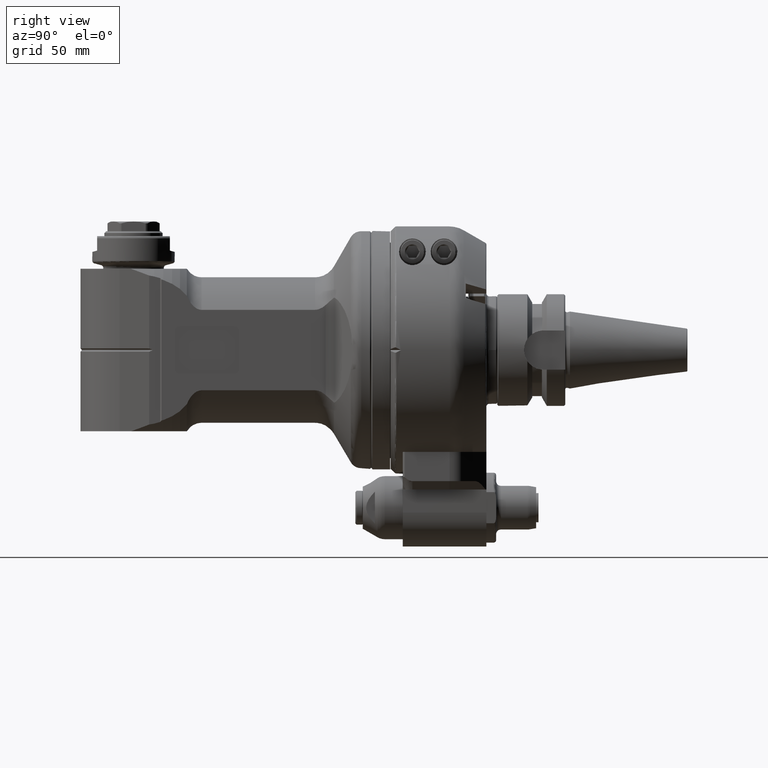
[diagram: clean part render]
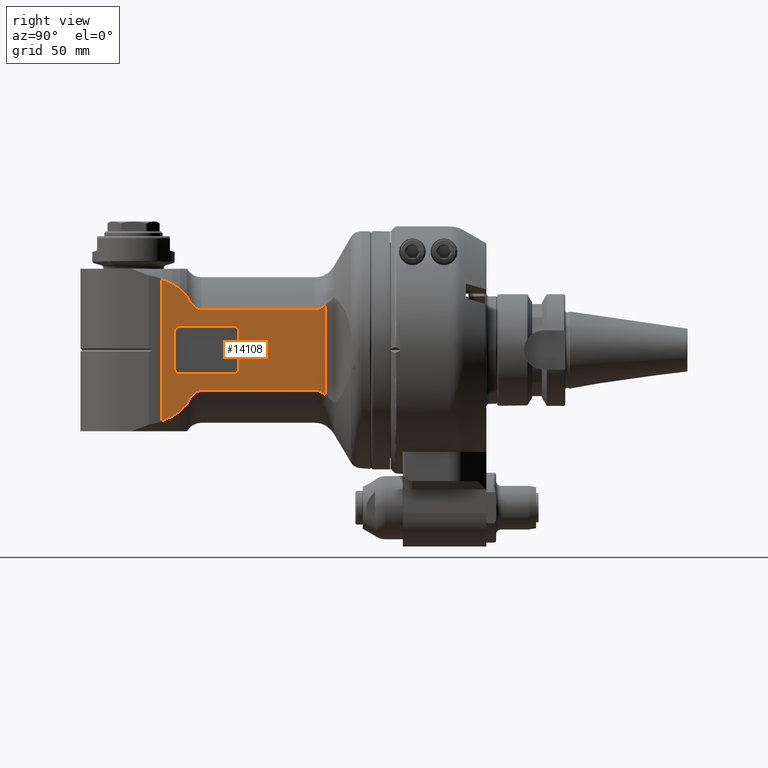
[diagram: same view with one face highlighted and labeled with its STEP entity id]
A machine part, right view. The second image highlights one B-rep face of the part: STEP entity #14108.
In plain terms, the highlighted planar face has unit normal (-1, 0, 0).
Its self-contained STEP definition (entity closure, byte-faithful):
#315=FACE_BOUND('',#2885,.T.);
#479=(
BOUNDED_CURVE()
B_SPLINE_CURVE(2,(#54399,#54400,#54401),.UNSPECIFIED.,.F.,.F.)
B_SPLINE_CURVE_WITH_KNOTS((3,3),(10.0626799056423,10.2526008068643),
 .UNSPECIFIED.)
CURVE()
GEOMETRIC_REPRESENTATION_ITEM()
RATIONAL_B_SPLINE_CURVE((1.02840572051089,1.01882819886388,1.00887903028035))
REPRESENTATION_ITEM('')
);
#480=(
BOUNDED_CURVE()
B_SPLINE_CURVE(2,(#54435,#54436,#54437),.UNSPECIFIED.,.F.,.F.)
B_SPLINE_CURVE_WITH_KNOTS((3,3),(-0.959764099372572,-0.6704163678676),
 .UNSPECIFIED.)
CURVE()
GEOMETRIC_REPRESENTATION_ITEM()
RATIONAL_B_SPLINE_CURVE((1.13756783349126,1.11959978720312,1.09996228300112))
REPRESENTATION_ITEM('')
);
#481=(
BOUNDED_CURVE()
B_SPLINE_CURVE(2,(#54438,#54439,#54440),.UNSPECIFIED.,.F.,.F.)
B_SPLINE_CURVE_WITH_KNOTS((3,3),(-0.532913393846783,-0.318014091893998),
 .UNSPECIFIED.)
CURVE()
GEOMETRIC_REPRESENTATION_ITEM()
RATIONAL_B_SPLINE_CURVE((1.06657051683378,1.05402008065282,1.04076639606592))
REPRESENTATION_ITEM('')
);
#482=(
BOUNDED_CURVE()
B_SPLINE_CURVE(2,(#54442,#54443,#54444),.UNSPECIFIED.,.F.,.F.)
B_SPLINE_CURVE_WITH_KNOTS((3,3),(0.177103965921413,0.209806671999694),
 .UNSPECIFIED.)
CURVE()
GEOMETRIC_REPRESENTATION_ITEM()
RATIONAL_B_SPLINE_CURVE((1.01355670021788,1.01479304991963,1.01602375286964))
REPRESENTATION_ITEM('')
);
#483=(
BOUNDED_CURVE()
B_SPLINE_CURVE(2,(#54448,#54449,#54450),.UNSPECIFIED.,.F.,.F.)
B_SPLINE_CURVE_WITH_KNOTS((3,3),(14.4648398716209,14.4975425776885),
 .UNSPECIFIED.)
CURVE()
GEOMETRIC_REPRESENTATION_ITEM()
RATIONAL_B_SPLINE_CURVE((1.01602375273381,1.01479304978397,1.01355670008238))
REPRESENTATION_ITEM('')
);
#484=(
BOUNDED_CURVE()
B_SPLINE_CURVE(2,(#54452,#54453,#54454),.UNSPECIFIED.,.F.,.F.)
B_SPLINE_CURVE_WITH_KNOTS((3,3),(-10.2522074218785,-10.0622916795826),
 .UNSPECIFIED.)
CURVE()
GEOMETRIC_REPRESENTATION_ITEM()
RATIONAL_B_SPLINE_CURVE((1.0088666855915,1.01881573243655,1.02839313689258))
REPRESENTATION_ITEM('')
);
#485=(
BOUNDED_CURVE()
B_SPLINE_CURVE(2,(#54456,#54457,#54458),.UNSPECIFIED.,.F.,.F.)
B_SPLINE_CURVE_WITH_KNOTS((3,3),(-8.41775624130447,-8.20286393257769),
 .UNSPECIFIED.)
CURVE()
GEOMETRIC_REPRESENTATION_ITEM()
RATIONAL_B_SPLINE_CURVE((1.0407483367188,1.05400179132849,1.06655200973496))
REPRESENTATION_ITEM('')
);
#486=(
BOUNDED_CURVE()
B_SPLINE_CURVE(2,(#54460,#54461,#54462),.UNSPECIFIED.,.F.,.F.)
B_SPLINE_CURVE_WITH_KNOTS((3,3),(-7.47705651106012,-7.18771987266258),
 .UNSPECIFIED.)
CURVE()
GEOMETRIC_REPRESENTATION_ITEM()
RATIONAL_B_SPLINE_CURVE((1.09993449274313,1.11957149630538,1.13753908489786))
REPRESENTATION_ITEM('')
);
#641=B_SPLINE_CURVE_WITH_KNOTS('',3,(#54409,#54410,#54411,#54412,#54413,
#54414,#54415,#54416),.UNSPECIFIED.,.F.,.F.,(4,2,2,4),(2.68007420427812,
2.85940536172762,3.00882891197884,3.1423743118532),.UNSPECIFIED.);
#642=B_SPLINE_CURVE_WITH_KNOTS('',3,(#54420,#54421,#54422,#54423,#54424,
#54425,#54426,#54427,#54428,#54429,#54430,#54431,#54432,#54433),
 .UNSPECIFIED.,.F.,.F.,(4,2,2,2,2,2,4),(-3.32581351683858,-3.21328851460941,
-3.0207654607387,-2.86863153258841,-2.71649760443812,-2.60114781955608,
-2.49776209313838),.UNSPECIFIED.);
#643=B_SPLINE_CURVE_WITH_KNOTS('',3,(#54464,#54465,#54466,#54467,#54468,
#54469,#54470,#54471,#54472,#54473,#54474,#54475,#54476,#54477),
 .UNSPECIFIED.,.F.,.F.,(4,2,2,2,2,2,4),(-2.49776209313838,-2.39437636672067,
-2.27902658183863,-2.12689265368834,-1.97475872553806,-1.78223567166734,
-1.66971058202039),.UNSPECIFIED.);
#644=B_SPLINE_CURVE_WITH_KNOTS('',3,(#54480,#54481,#54482,#54483,#54484,
#54485,#54486,#54487),.UNSPECIFIED.,.F.,.F.,(4,2,2,4),(3.1423743118532,
3.27591971172755,3.42534326197877,3.60467441942828),.UNSPECIFIED.);
#924=PLANE('',#15709);
#1890=FACE_OUTER_BOUND('',#2884,.T.);
#2884=EDGE_LOOP('',(#12193,#12194,#12195,#12196,#12197,#12198,#12199,#12200,
#12201,#12202,#12203,#12204,#12205,#12206,#12207,#12208));
#2885=EDGE_LOOP('',(#12209,#12210,#12211,#12212,#12213,#12214,#12215,#12216));
#3813=CIRCLE('',#15710,2.);
#3814=CIRCLE('',#15711,2.);
#3815=CIRCLE('',#15712,2.);
#3816=CIRCLE('',#15713,2.);
#4672=LINE('',#54407,#5546);
#4673=LINE('',#54418,#5547);
#4674=LINE('',#54446,#5548);
#4675=LINE('',#54479,#5549);
#4676=LINE('',#54490,#5550);
#4677=LINE('',#54494,#5551);
#4678=LINE('',#54498,#5552);
#4679=LINE('',#54502,#5553);
#5546=VECTOR('',#19401,37.09647208267);
#5547=VECTOR('',#19402,46.7720146362);
#5548=VECTOR('',#19403,10.);
#5549=VECTOR('',#19404,46.7720146362);
#5550=VECTOR('',#19405,22.5);
#5551=VECTOR('',#19408,15.5);
#5552=VECTOR('',#19411,22.5);
#5553=VECTOR('',#19414,15.5);
#6788=VERTEX_POINT('',#54397);
#6789=VERTEX_POINT('',#54398);
#6790=VERTEX_POINT('',#54405);
#6791=VERTEX_POINT('',#54406);
#6792=VERTEX_POINT('',#54408);
#6793=VERTEX_POINT('',#54417);
#6794=VERTEX_POINT('',#54419);
#6795=VERTEX_POINT('',#54434);
#6796=VERTEX_POINT('',#54441);
#6797=VERTEX_POINT('',#54445);
#6798=VERTEX_POINT('',#54447);
#6799=VERTEX_POINT('',#54451);
#6800=VERTEX_POINT('',#54455);
#6801=VERTEX_POINT('',#54459);
#6802=VERTEX_POINT('',#54463);
#6803=VERTEX_POINT('',#54478);
#6804=VERTEX_POINT('',#54488);
#6805=VERTEX_POINT('',#54489);
#6806=VERTEX_POINT('',#54491);
#6807=VERTEX_POINT('',#54493);
#6808=VERTEX_POINT('',#54495);
#6809=VERTEX_POINT('',#54497);
#6810=VERTEX_POINT('',#54499);
#6811=VERTEX_POINT('',#54501);
#8661=EDGE_CURVE('',#6788,#6789,#479,.T.);
#8664=EDGE_CURVE('',#6790,#6791,#4672,.T.);
#8665=EDGE_CURVE('',#6790,#6792,#641,.T.);
#8666=EDGE_CURVE('',#6793,#6792,#4673,.T.);
#8667=EDGE_CURVE('',#6794,#6793,#642,.T.);
#8668=EDGE_CURVE('',#6794,#6795,#480,.T.);
#8669=EDGE_CURVE('',#6795,#6788,#481,.T.);
#8670=EDGE_CURVE('',#6796,#6789,#482,.T.);
#8671=EDGE_CURVE('',#6797,#6796,#4674,.T.);
#8672=EDGE_CURVE('',#6798,#6797,#483,.T.);
#8673=EDGE_CURVE('',#6798,#6799,#484,.T.);
#8674=EDGE_CURVE('',#6799,#6800,#485,.T.);
#8675=EDGE_CURVE('',#6800,#6801,#486,.T.);
#8676=EDGE_CURVE('',#6802,#6801,#643,.T.);
#8677=EDGE_CURVE('',#6803,#6802,#4675,.T.);
#8678=EDGE_CURVE('',#6803,#6791,#644,.T.);
#8679=EDGE_CURVE('',#6804,#6805,#4676,.T.);
#8680=EDGE_CURVE('',#6805,#6806,#3813,.T.);
#8681=EDGE_CURVE('',#6806,#6807,#4677,.T.);
#8682=EDGE_CURVE('',#6807,#6808,#3814,.T.);
#8683=EDGE_CURVE('',#6808,#6809,#4678,.T.);
#8684=EDGE_CURVE('',#6809,#6810,#3815,.T.);
#8685=EDGE_CURVE('',#6810,#6811,#4679,.T.);
#8686=EDGE_CURVE('',#6811,#6804,#3816,.T.);
#12193=ORIENTED_EDGE('',*,*,#8664,.F.);
#12194=ORIENTED_EDGE('',*,*,#8665,.T.);
#12195=ORIENTED_EDGE('',*,*,#8666,.F.);
#12196=ORIENTED_EDGE('',*,*,#8667,.F.);
#12197=ORIENTED_EDGE('',*,*,#8668,.T.);
#12198=ORIENTED_EDGE('',*,*,#8669,.T.);
#12199=ORIENTED_EDGE('',*,*,#8661,.T.);
#12200=ORIENTED_EDGE('',*,*,#8670,.F.);
#12201=ORIENTED_EDGE('',*,*,#8671,.F.);
#12202=ORIENTED_EDGE('',*,*,#8672,.F.);
#12203=ORIENTED_EDGE('',*,*,#8673,.T.);
#12204=ORIENTED_EDGE('',*,*,#8674,.T.);
#12205=ORIENTED_EDGE('',*,*,#8675,.T.);
#12206=ORIENTED_EDGE('',*,*,#8676,.F.);
#12207=ORIENTED_EDGE('',*,*,#8677,.F.);
#12208=ORIENTED_EDGE('',*,*,#8678,.T.);
#12209=ORIENTED_EDGE('',*,*,#8679,.T.);
#12210=ORIENTED_EDGE('',*,*,#8680,.T.);
#12211=ORIENTED_EDGE('',*,*,#8681,.T.);
#12212=ORIENTED_EDGE('',*,*,#8682,.T.);
#12213=ORIENTED_EDGE('',*,*,#8683,.T.);
#12214=ORIENTED_EDGE('',*,*,#8684,.T.);
#12215=ORIENTED_EDGE('',*,*,#8685,.T.);
#12216=ORIENTED_EDGE('',*,*,#8686,.T.);
#14108=ADVANCED_FACE('',(#1890,#315),#924,.F.);
#15709=AXIS2_PLACEMENT_3D('',#54404,#19399,#19400);
#15710=AXIS2_PLACEMENT_3D('',#54492,#19406,#19407);
#15711=AXIS2_PLACEMENT_3D('',#54496,#19409,#19410);
#15712=AXIS2_PLACEMENT_3D('',#54500,#19412,#19413);
#15713=AXIS2_PLACEMENT_3D('',#54503,#19415,#19416);
#19399=DIRECTION('center_axis',(0.,0.,-1.));
#19400=DIRECTION('ref_axis',(1.,0.,0.));
#19401=DIRECTION('',(0.,1.,0.));
#19402=DIRECTION('',(-1.,0.,0.));
#19403=DIRECTION('',(0.,-1.,0.));
#19404=DIRECTION('',(1.,0.,0.));
#19405=DIRECTION('',(-1.,0.,0.));
#19406=DIRECTION('center_axis',(0.,0.,-1.));
#19407=DIRECTION('ref_axis',(0.,-1.,0.));
#19408=DIRECTION('',(0.,1.,0.));
#19409=DIRECTION('center_axis',(0.,0.,-1.));
#19410=DIRECTION('ref_axis',(-1.,0.,0.));
#19411=DIRECTION('',(1.,0.,0.));
#19412=DIRECTION('center_axis',(0.,0.,-1.));
#19413=DIRECTION('ref_axis',(0.,1.,0.));
#19414=DIRECTION('',(0.,-1.,0.));
#19415=DIRECTION('center_axis',(0.,0.,-1.));
#19416=DIRECTION('ref_axis',(1.,0.,0.));
#54397=CARTESIAN_POINT('',(94.0730565743641,-27.2763634946809,24.9999999690279));
#54398=CARTESIAN_POINT('',(97.766276708296,-28.8832131299173,24.9999999959775));
#54399=CARTESIAN_POINT('Ctrl Pts',(94.0730565896248,-27.2763634604014,25.));
#54400=CARTESIAN_POINT('Ctrl Pts',(95.8668310521675,-28.0669676858729,25.));
#54401=CARTESIAN_POINT('Ctrl Pts',(97.7662767088955,-28.8832131285638,25.));
#54404=CARTESIAN_POINT('Origin',(48.00000004466,-58.8000024,25.));
#54405=CARTESIAN_POINT('',(30.8008301975,-18.54823604133,25.));
#54406=CARTESIAN_POINT('',(30.8008301975,18.54823604133,25.));
#54407=CARTESIAN_POINT('',(30.8008301975,-18.54823604133,25.));
#54408=CARTESIAN_POINT('',(35.16580758197,-16.58312395178,25.));
#54409=CARTESIAN_POINT('Ctrl Pts',(30.8008301975013,-18.5482360413314,25.));
#54410=CARTESIAN_POINT('Ctrl Pts',(31.2768824719658,-18.1051437659629,25.));
#54411=CARTESIAN_POINT('Ctrl Pts',(31.7927287077858,-17.713449802726,25.));
#54412=CARTESIAN_POINT('Ctrl Pts',(32.7382766269785,-17.1595326432425,25.));
#54413=CARTESIAN_POINT('Ctrl Pts',(33.2844305992261,-16.9167277905047,25.));
#54414=CARTESIAN_POINT('Ctrl Pts',(34.1920196550243,-16.6598919965139,25.));
#54415=CARTESIAN_POINT('Ctrl Pts',(34.7206562490555,-16.583123951777,25.));
#54416=CARTESIAN_POINT('Ctrl Pts',(35.16580758197,-16.583123951777,25.));
#54417=CARTESIAN_POINT('',(81.93782221817,-16.58312395178,25.));
#54418=CARTESIAN_POINT('',(81.93782221817,-16.58312395178,25.));
#54419=CARTESIAN_POINT('',(88.0000003213942,-22.2991037344195,24.9999998483624));
#54420=CARTESIAN_POINT('Ctrl Pts',(88.0000002856868,-22.2991037481422,25.));
#54421=CARTESIAN_POINT('Ctrl Pts',(87.8570280916971,-21.9270808407463,25.));
#54422=CARTESIAN_POINT('Ctrl Pts',(87.6935946921902,-21.5500745930567,25.));
#54423=CARTESIAN_POINT('Ctrl Pts',(87.2036025382881,-20.5518000895077,25.));
#54424=CARTESIAN_POINT('Ctrl Pts',(86.8418295870736,-19.9481759632981,25.));
#54425=CARTESIAN_POINT('Ctrl Pts',(86.1684215512574,-19.0173735566937,25.));
#54426=CARTESIAN_POINT('Ctrl Pts',(85.8122244578217,-18.5891145938405,25.));
#54427=CARTESIAN_POINT('Ctrl Pts',(85.0206983836014,-17.8190712330243,25.));
#54428=CARTESIAN_POINT('Ctrl Pts',(84.5843919534727,-17.478292191667,25.));
#54429=CARTESIAN_POINT('Ctrl Pts',(83.8152160730215,-17.0273586096957,25.));
#54430=CARTESIAN_POINT('Ctrl Pts',(83.3934489095303,-16.8402713953867,25.));
#54431=CARTESIAN_POINT('Ctrl Pts',(82.6917353349449,-16.6422520575151,25.));
#54432=CARTESIAN_POINT('Ctrl Pts',(82.282441306229,-16.583123951777,25.));
#54433=CARTESIAN_POINT('Ctrl Pts',(81.93782221817,-16.583123951777,25.));
#54434=CARTESIAN_POINT('',(90.8562966483786,-25.2041669857687,24.9999998136759));
#54435=CARTESIAN_POINT('Ctrl Pts',(88.000000482371,-22.2991035814185,25.));
#54436=CARTESIAN_POINT('Ctrl Pts',(89.3408101630023,-23.7095328932192,25.));
#54437=CARTESIAN_POINT('Ctrl Pts',(90.8562966895663,-25.2041669449931,25.));
#54438=CARTESIAN_POINT('Ctrl Pts',(90.8562967754463,-25.2041667933738,25.));
#54439=CARTESIAN_POINT('Ctrl Pts',(92.4011697074171,-26.2188286251669,25.));
#54440=CARTESIAN_POINT('Ctrl Pts',(94.0730565813035,-27.2763634840399,25.));
#54441=CARTESIAN_POINT('',(98.4900005095658,-29.0863623621592,24.999999794761));
#54442=CARTESIAN_POINT('Ctrl Pts',(98.4900006372509,-29.086361927791,25.));
#54443=CARTESIAN_POINT('Ctrl Pts',(98.1268705630049,-28.9845834161671,25.));
#54444=CARTESIAN_POINT('Ctrl Pts',(97.7662767096866,-28.8832131250135,25.));
#54445=CARTESIAN_POINT('',(98.4900005095658,29.0863623621592,24.999999794761));
#54446=CARTESIAN_POINT('',(98.4900000000001,-29.4000012000001,25.));
#54447=CARTESIAN_POINT('',(97.7662767082955,28.883213129917,24.9999999959776));
#54448=CARTESIAN_POINT('Ctrl Pts',(97.766276709686,28.8832131250133,25.));
#54449=CARTESIAN_POINT('Ctrl Pts',(98.1268705630045,28.984583416167,25.));
#54450=CARTESIAN_POINT('Ctrl Pts',(98.4900006372509,29.0863619277909,25.));
#54451=CARTESIAN_POINT('',(94.0730565743643,27.276363494681,24.9999999690278));
#54452=CARTESIAN_POINT('Ctrl Pts',(97.7662767088949,28.8832131285635,25.));
#54453=CARTESIAN_POINT('Ctrl Pts',(95.8668310521673,28.0669676858729,25.));
#54454=CARTESIAN_POINT('Ctrl Pts',(94.073056589625,27.2763634604015,25.));
#54455=CARTESIAN_POINT('',(90.8562966483176,25.2041669856958,24.9999998136967));
#54456=CARTESIAN_POINT('Ctrl Pts',(94.0730565813037,27.27636348404,25.));
#54457=CARTESIAN_POINT('Ctrl Pts',(92.401169707376,26.218828625141,25.));
#54458=CARTESIAN_POINT('Ctrl Pts',(90.8562967753703,25.2041667933239,25.));
#54459=CARTESIAN_POINT('',(88.0000007039945,22.2991045825147,24.999999638726));
#54460=CARTESIAN_POINT('Ctrl Pts',(90.8562966894988,25.2041669449266,25.));
#54461=CARTESIAN_POINT('Ctrl Pts',(89.3408105043881,23.7095332299057,25.));
#54462=CARTESIAN_POINT('Ctrl Pts',(88.000001087571,22.2991042180426,25.));
#54463=CARTESIAN_POINT('',(81.93782221817,16.58312395178,25.));
#54464=CARTESIAN_POINT('Ctrl Pts',(81.93782221817,16.583123951777,25.));
#54465=CARTESIAN_POINT('Ctrl Pts',(82.282441306229,16.583123951777,25.));
#54466=CARTESIAN_POINT('Ctrl Pts',(82.6917353349449,16.6422520575151,25.));
#54467=CARTESIAN_POINT('Ctrl Pts',(83.3934489095303,16.8402713953867,25.));
#54468=CARTESIAN_POINT('Ctrl Pts',(83.8152160730215,17.0273586096957,25.));
#54469=CARTESIAN_POINT('Ctrl Pts',(84.5843919534727,17.478292191667,25.));
#54470=CARTESIAN_POINT('Ctrl Pts',(85.0206983836014,17.8190712330244,25.));
#54471=CARTESIAN_POINT('Ctrl Pts',(85.8122244578217,18.5891145938405,25.));
#54472=CARTESIAN_POINT('Ctrl Pts',(86.1684215512574,19.0173735566936,25.));
#54473=CARTESIAN_POINT('Ctrl Pts',(86.8418295870736,19.9481759632981,25.));
#54474=CARTESIAN_POINT('Ctrl Pts',(87.2036025382881,20.5518000895077,25.));
#54475=CARTESIAN_POINT('Ctrl Pts',(87.6935948326076,21.5500748791327,25.));
#54476=CARTESIAN_POINT('Ctrl Pts',(87.857028345229,21.927081426712,25.));
#54477=CARTESIAN_POINT('Ctrl Pts',(88.0000006189109,22.2991046152131,25.));
#54478=CARTESIAN_POINT('',(35.16580758197,16.58312395178,25.));
#54479=CARTESIAN_POINT('',(35.16580758197,16.58312395178,25.));
#54480=CARTESIAN_POINT('Ctrl Pts',(35.16580758197,16.583123951777,25.));
#54481=CARTESIAN_POINT('Ctrl Pts',(34.7206562490555,16.583123951777,25.));
#54482=CARTESIAN_POINT('Ctrl Pts',(34.1920196550243,16.6598919965139,25.));
#54483=CARTESIAN_POINT('Ctrl Pts',(33.2844305992261,16.9167277905047,25.));
#54484=CARTESIAN_POINT('Ctrl Pts',(32.7382766269785,17.1595326432425,25.));
#54485=CARTESIAN_POINT('Ctrl Pts',(31.7927287077858,17.713449802726,25.));
#54486=CARTESIAN_POINT('Ctrl Pts',(31.2768824719658,18.1051437659629,25.));
#54487=CARTESIAN_POINT('Ctrl Pts',(30.8008301975013,18.5482360413314,25.));
#54488=CARTESIAN_POINT('',(91.,-9.75,25.));
#54489=CARTESIAN_POINT('',(68.5,-9.75,25.));
#54490=CARTESIAN_POINT('',(91.,-9.75,25.));
#54491=CARTESIAN_POINT('',(66.5,-7.75,25.));
#54492=CARTESIAN_POINT('Origin',(68.5,-7.75,25.));
#54493=CARTESIAN_POINT('',(66.5,7.75,25.));
#54494=CARTESIAN_POINT('',(66.5,-7.75,25.));
#54495=CARTESIAN_POINT('',(68.5,9.75,25.));
#54496=CARTESIAN_POINT('Origin',(68.5,7.75,25.));
#54497=CARTESIAN_POINT('',(91.,9.75,25.));
#54498=CARTESIAN_POINT('',(68.5,9.75,25.));
#54499=CARTESIAN_POINT('',(93.,7.75,25.));
#54500=CARTESIAN_POINT('Origin',(91.,7.75,25.));
#54501=CARTESIAN_POINT('',(93.,-7.75,25.));
#54502=CARTESIAN_POINT('',(93.,7.75,25.));
#54503=CARTESIAN_POINT('Origin',(91.,-7.75,25.));